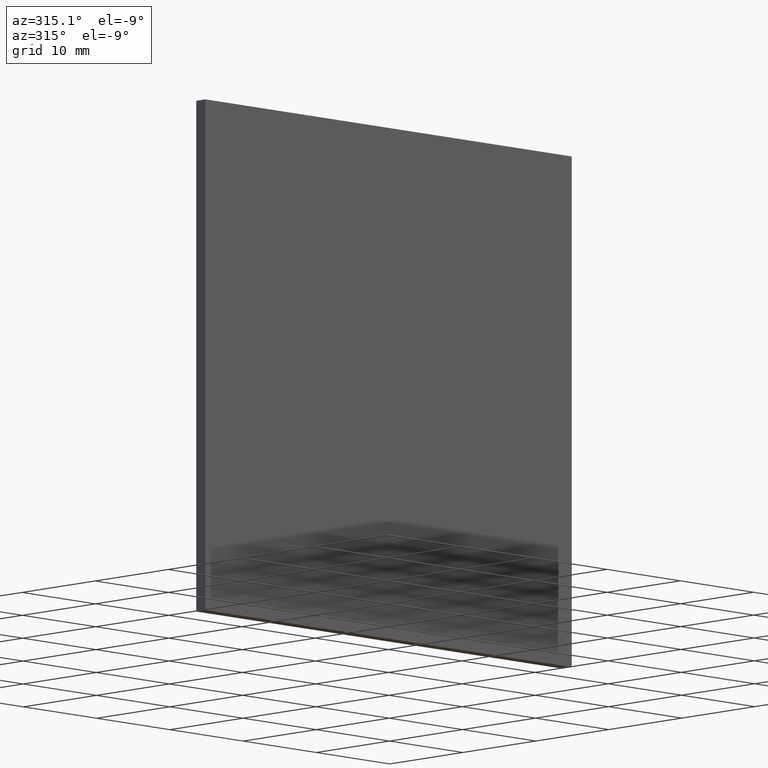
[diagram: clean part render]
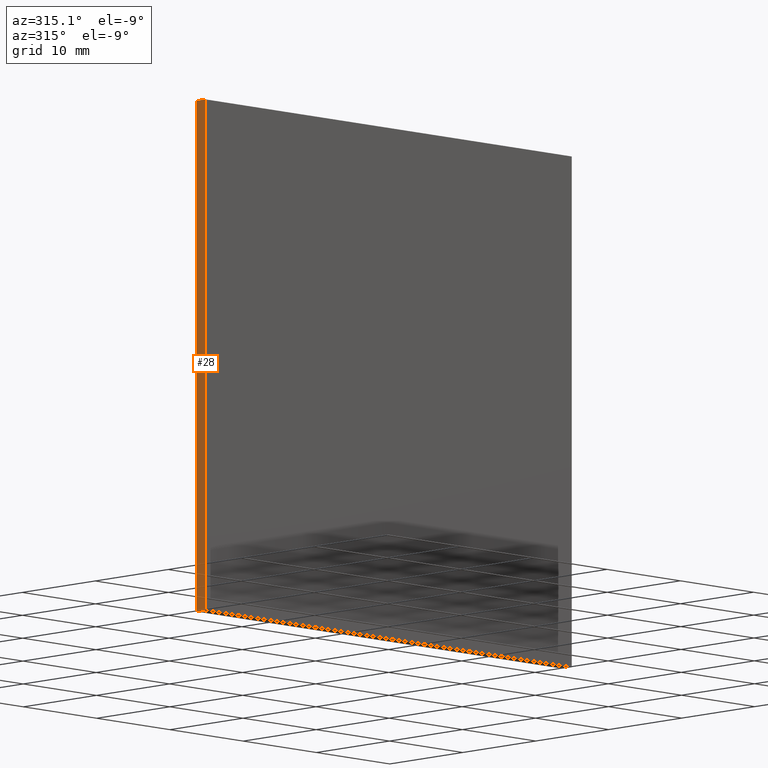
[diagram: same view with one face highlighted and labeled with its STEP entity id]
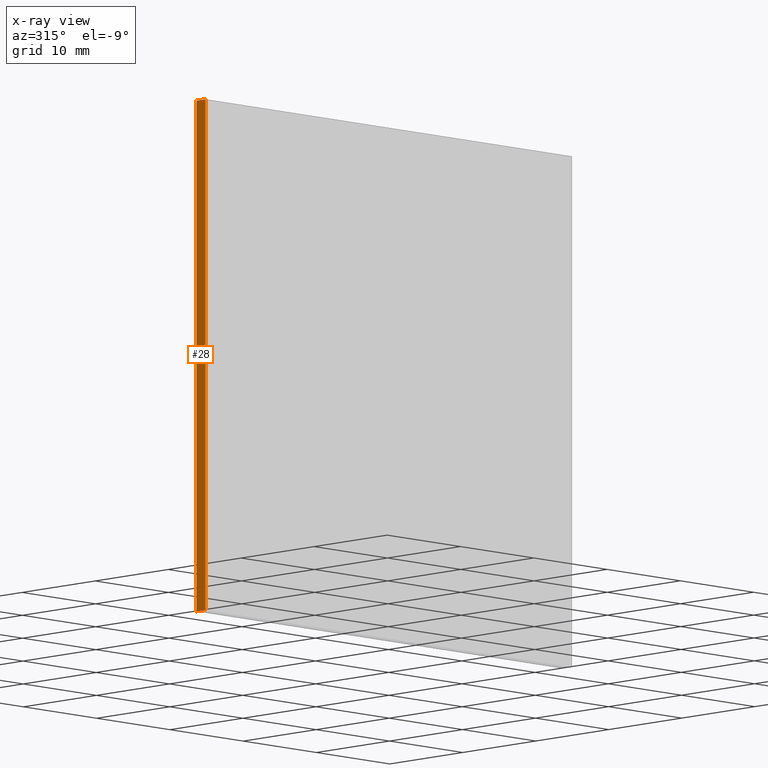
[diagram: x-ray of the same camera — body ghosted, the highlighted face saturated]
A machine part, auxiliary view. The second image highlights one B-rep face of the part: STEP entity #28.
The next image is the same camera in x-ray: the body ghosted, the highlighted face saturated — about 0% of this face is hidden behind the body in this view.
In plain terms, the highlighted planar face has unit normal (1, -0, 0).
Its self-contained STEP definition (entity closure, byte-faithful):
#1 = VECTOR ( 'NONE', #69, 1000.000000000000000 ) ;
#7 = VECTOR ( 'NONE', #97, 1000.000000000000000 ) ;
#14 = VERTEX_POINT ( 'NONE', #107 ) ;
#15 = DIRECTION ( 'NONE',  ( 1.000000000000000000, -0.0000000000000000000, 0.0000000000000000000 ) ) ;
#16 = EDGE_CURVE ( 'NONE', #163, #188, #79, .T. ) ;
#17 = LINE ( 'NONE', #201, #136 ) ;
#22 = EDGE_CURVE ( 'NONE', #178, #14, #150, .T. ) ;
#28 = ADVANCED_FACE ( 'NONE', ( #37 ), #91, .F. ) ;
#30 = CARTESIAN_POINT ( 'NONE',  ( -25.00000000000000000, 0.0000000000000000000, 25.00000000000000000 ) ) ;
#33 = ORIENTED_EDGE ( 'NONE', *, *, #197, .F. ) ;
#37 = FACE_OUTER_BOUND ( 'NONE', #81, .T. ) ;
#39 = EDGE_CURVE ( 'NONE', #178, #163, #134, .T. ) ;
#53 = DIRECTION ( 'NONE',  ( -0.0000000000000000000, -1.000000000000000000, -0.0000000000000000000 ) ) ;
#68 = CARTESIAN_POINT ( 'NONE',  ( -25.00000000000000000, 0.0000000000000000000, 25.00000000000000000 ) ) ;
#69 = DIRECTION ( 'NONE',  ( -0.0000000000000000000, -0.0000000000000000000, 1.000000000000000000 ) ) ;
#75 = DIRECTION ( 'NONE',  ( 0.0000000000000000000, 0.0000000000000000000, -1.000000000000000000 ) ) ;
#79 = LINE ( 'NONE', #68, #160 ) ;
#81 = EDGE_LOOP ( 'NONE', ( #90, #33, #187, #180 ) ) ;
#84 = CARTESIAN_POINT ( 'NONE',  ( -25.00000000000000000, 1.250000000000000000, -25.00000000000000000 ) ) ;
#87 = DIRECTION ( 'NONE',  ( -0.0000000000000000000, -0.0000000000000000000, 1.000000000000000000 ) ) ;
#90 = ORIENTED_EDGE ( 'NONE', *, *, #16, .T. ) ;
#91 = PLANE ( 'NONE',  #133 ) ;
#97 = DIRECTION ( 'NONE',  ( -0.0000000000000000000, -1.000000000000000000, -0.0000000000000000000 ) ) ;
#107 = CARTESIAN_POINT ( 'NONE',  ( -25.00000000000000000, 1.250000000000000000, 25.00000000000000000 ) ) ;
#119 = CARTESIAN_POINT ( 'NONE',  ( -25.00000000000000000, 1.250000000000000000, 25.00000000000000000 ) ) ;
#121 = CARTESIAN_POINT ( 'NONE',  ( -25.00000000000000000, 0.0000000000000000000, -25.00000000000000000 ) ) ;
#128 = CARTESIAN_POINT ( 'NONE',  ( -25.00000000000000000, 1.250000000000000000, -25.00000000000000000 ) ) ;
#133 = AXIS2_PLACEMENT_3D ( 'NONE', #119, #15, #75 ) ;
#134 = LINE ( 'NONE', #84, #7 ) ;
#136 = VECTOR ( 'NONE', #53, 1000.000000000000000 ) ;
#150 = LINE ( 'NONE', #184, #1 ) ;
#160 = VECTOR ( 'NONE', #87, 1000.000000000000000 ) ;
#163 = VERTEX_POINT ( 'NONE', #121 ) ;
#178 = VERTEX_POINT ( 'NONE', #128 ) ;
#180 = ORIENTED_EDGE ( 'NONE', *, *, #39, .T. ) ;
#184 = CARTESIAN_POINT ( 'NONE',  ( -25.00000000000000000, 1.250000000000000000, 25.00000000000000000 ) ) ;
#187 = ORIENTED_EDGE ( 'NONE', *, *, #22, .F. ) ;
#188 = VERTEX_POINT ( 'NONE', #30 ) ;
#197 = EDGE_CURVE ( 'NONE', #14, #188, #17, .T. ) ;
#201 = CARTESIAN_POINT ( 'NONE',  ( -25.00000000000000000, 1.250000000000000000, 25.00000000000000000 ) ) ;